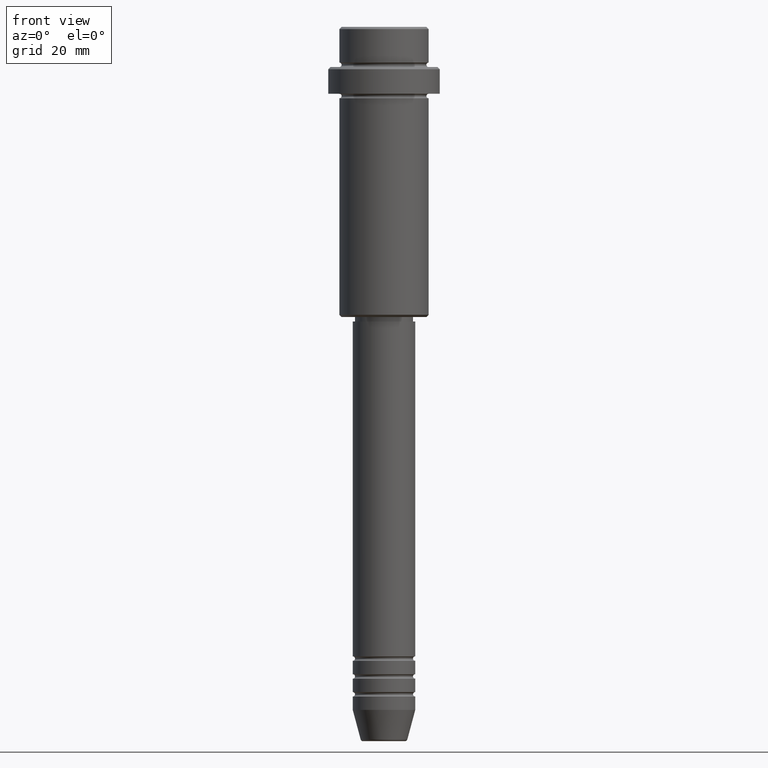
[diagram: clean part render]
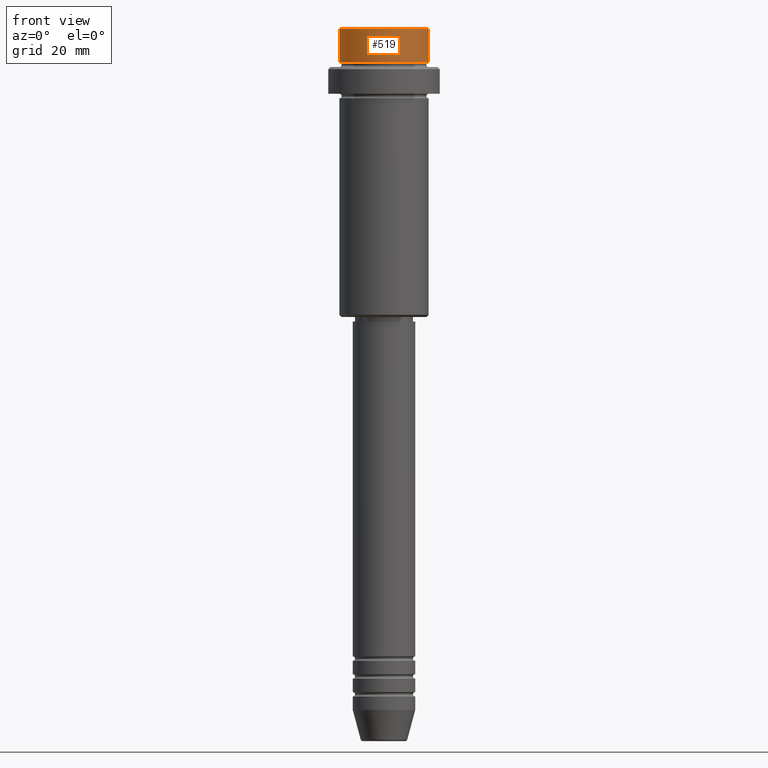
[diagram: same view with one face highlighted and labeled with its STEP entity id]
A machine part, front view. The second image highlights one B-rep face of the part: STEP entity #519.
In plain terms, the highlighted cylindrical surface (partial cylindrical patch) has radius 10 mm, axis along (-0, -0, 1).
Its self-contained STEP definition (entity closure, byte-faithful):
#2 = CIRCLE ( 'NONE', #806, 9.999999999999998224 ) ;
#6 = VERTEX_POINT ( 'NONE', #19 ) ;
#19 = CARTESIAN_POINT ( 'NONE',  ( 9.999999999999998224, 0.000000000000000000, -7.999999999999998224 ) ) ;
#77 = VECTOR ( 'NONE', #1311, 1000.000000000000000 ) ;
#83 = CARTESIAN_POINT ( 'NONE',  ( 0.000000000000000000, 0.000000000000000000, 0.000000000000000000 ) ) ;
#110 = ORIENTED_EDGE ( 'NONE', *, *, #1109, .T. ) ;
#138 = EDGE_CURVE ( 'NONE', #667, #6, #203, .T. ) ;
#158 = EDGE_CURVE ( 'NONE', #667, #1234, #845, .T. ) ;
#203 = CIRCLE ( 'NONE', #1057, 9.999999999999998224 ) ;
#244 = ORIENTED_EDGE ( 'NONE', *, *, #158, .F. ) ;
#273 = DIRECTION ( 'NONE',  ( -0.000000000000000000, -0.000000000000000000, 1.000000000000000000 ) ) ;
#519 = ADVANCED_FACE ( 'NONE', ( #1075 ), #858, .T. ) ;
#605 = CARTESIAN_POINT ( 'NONE',  ( 0.000000000000000000, 0.000000000000000000, -0.5000000000000386358 ) ) ;
#643 = CARTESIAN_POINT ( 'NONE',  ( 9.999999999999998224, 0.000000000000000000, 0.000000000000000000 ) ) ;
#667 = VERTEX_POINT ( 'NONE', #995 ) ;
#724 = DIRECTION ( 'NONE',  ( -0.000000000000000000, -0.000000000000000000, 1.000000000000000000 ) ) ;
#806 = AXIS2_PLACEMENT_3D ( 'NONE', #605, #949, #1282 ) ;
#845 = LINE ( 'NONE', #1371, #943 ) ;
#858 = CYLINDRICAL_SURFACE ( 'NONE', #1332, 9.999999999999998224 ) ;
#924 = DIRECTION ( 'NONE',  ( -0.000000000000000000, -0.000000000000000000, 1.000000000000000000 ) ) ;
#943 = VECTOR ( 'NONE', #273, 1000.000000000000000 ) ;
#949 = DIRECTION ( 'NONE',  ( 0.000000000000000000, 0.000000000000000000, -1.000000000000000000 ) ) ;
#951 = ORIENTED_EDGE ( 'NONE', *, *, #965, .T. ) ;
#965 = EDGE_CURVE ( 'NONE', #1089, #1234, #2, .T. ) ;
#995 = CARTESIAN_POINT ( 'NONE',  ( -9.999999999999998224, 1.224646799147353059E-15, -7.999999999999998224 ) ) ;
#1000 = LINE ( 'NONE', #643, #77 ) ;
#1057 = AXIS2_PLACEMENT_3D ( 'NONE', #1160, #924, #1358 ) ;
#1058 = ORIENTED_EDGE ( 'NONE', *, *, #138, .T. ) ;
#1075 = FACE_OUTER_BOUND ( 'NONE', #1106, .T. ) ;
#1089 = VERTEX_POINT ( 'NONE', #1367 ) ;
#1106 = EDGE_LOOP ( 'NONE', ( #244, #1058, #110, #951 ) ) ;
#1109 = EDGE_CURVE ( 'NONE', #6, #1089, #1000, .T. ) ;
#1158 = DIRECTION ( 'NONE',  ( 1.000000000000000000, 0.000000000000000000, 0.000000000000000000 ) ) ;
#1160 = CARTESIAN_POINT ( 'NONE',  ( 0.000000000000000000, 0.000000000000000000, -7.999999999999998224 ) ) ;
#1234 = VERTEX_POINT ( 'NONE', #1301 ) ;
#1282 = DIRECTION ( 'NONE',  ( 1.000000000000000000, 0.000000000000000000, 0.000000000000000000 ) ) ;
#1301 = CARTESIAN_POINT ( 'NONE',  ( -9.999999999999998224, 1.224646799147353059E-15, -0.5000000000000386358 ) ) ;
#1311 = DIRECTION ( 'NONE',  ( -0.000000000000000000, -0.000000000000000000, 1.000000000000000000 ) ) ;
#1332 = AXIS2_PLACEMENT_3D ( 'NONE', #83, #724, #1158 ) ;
#1358 = DIRECTION ( 'NONE',  ( 1.000000000000000000, 0.000000000000000000, 0.000000000000000000 ) ) ;
#1367 = CARTESIAN_POINT ( 'NONE',  ( 9.999999999999998224, 0.000000000000000000, -0.5000000000000386358 ) ) ;
#1371 = CARTESIAN_POINT ( 'NONE',  ( -9.999999999999998224, 1.224646799147353059E-15, 0.000000000000000000 ) ) ;